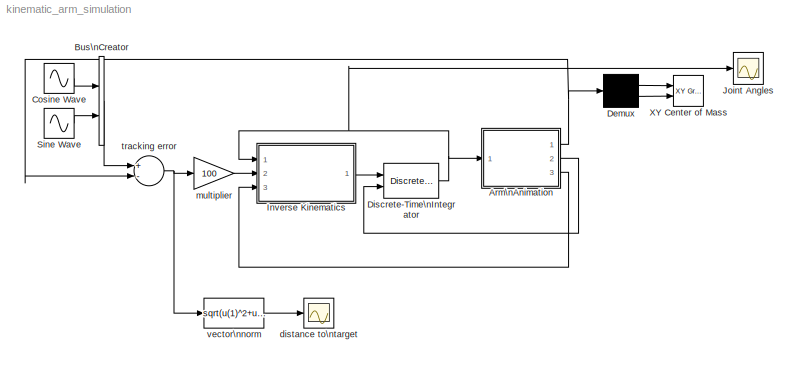
MODEL kinematic_arm_simulation
KIND model
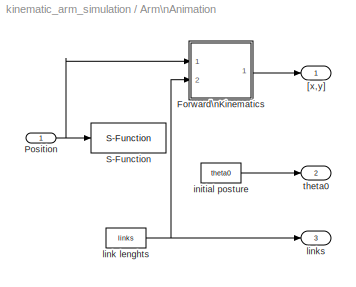
BLOCK [SubSystem] Arm\nAnimation
  FunctionWithSeparateData = off
  MaskCallbackString = ||
  MaskEnableString = on,on,on
  MaskHideContents = off
  MaskIconFrame = on
  MaskIconOpaque = on
  MaskIconRotate = none
  MaskIconUnits = normalized
  MaskPortRotate = default
  MaskPromptString = Link Lengths|Initial Posture|Sample time:
  MaskStyleString = edit,edit,edit
  MaskToolTipString = on,on,on
  MaskTunableValueString = on,on,on
  MaskType = ArmAnimation
  MaskValueString = [0.3 0.15 0.2 0.05]|[-0.4302;0.149;0.3393; 0.4422]|.05
  MaskVariables = links=@1;theta0=@2;ts=@3;
  MaskVisibilityString = on,on,on
  MinAlgLoopOccurrences = off
  Opaque = off
  Ports = [1, 3]
  PropExecContextOutsideSubsystem = off
  RTWSystemCode = Auto
  RequestExecContextInheritance = off
  SID = 1
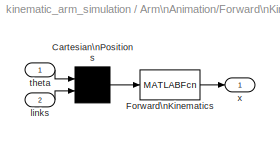
BLOCK [SubSystem] Arm\nAnimation/Forward\nKinematics
  FunctionWithSeparateData = off
  MaskHideContents = off
  MaskIconFrame = on
  MaskIconOpaque = on
  MaskIconRotate = none
  MaskIconUnits = autoscale
  MaskPortRotate = default
  MaskType = Forward Kinematics
  MinAlgLoopOccurrences = off
  Opaque = off
  Ports = [2, 1]
  PropExecContextOutsideSubsystem = off
  RTWSystemCode = Auto
  RequestExecContextInheritance = off
  SID = 3
BLOCK [Mux] Arm\nAnimation/Forward\nKinematics/Cartesian\nPositions
  Inputs = 2
  Ports = [2, 1]
  SID = 6
BLOCK [MATLABFcn] Arm\nAnimation/Forward\nKinematics/Forward\nKinematics
  MATLABFcn = forward_kinematics(u)
  OutputDimensions = 2
  Ports = [1, 1]
  SID = 7
BLOCK [Inport] Arm\nAnimation/Forward\nKinematics/links
  IconDisplay = Port number
  Port = 2
  SID = 5
BLOCK [Inport] Arm\nAnimation/Forward\nKinematics/theta
  IconDisplay = Port number
  SID = 4
BLOCK [Outport] Arm\nAnimation/Forward\nKinematics/x
  IconDisplay = Port number
  InitialOutput = 0
  SID = 8
BLOCK [Inport] Arm\nAnimation/Position
  IconDisplay = Port number
  SID = 2
BLOCK [S-Function] Arm\nAnimation/S-Function
  EnableBusSupport = off
  FunctionName = ArmAnimation
  Parameters = ts,theta0,links
  Ports = [1]
  SID = 9
BLOCK [Outport] Arm\nAnimation/[x,y]
  IconDisplay = Port number
  SID = 12
BLOCK [Constant] Arm\nAnimation/initial posture
  SID = 10
  Value = theta0
BLOCK [Constant] Arm\nAnimation/link lenghts
  SID = 11
  Value = links
BLOCK [Outport] Arm\nAnimation/links
  IconDisplay = Port number
  Port = 3
  SID = 14
BLOCK [Outport] Arm\nAnimation/theta0
  IconDisplay = Port number
  Port = 2
  SID = 13
BLOCK [BusCreator] Bus\nCreator
  DisplayOption = bar
  Inputs = 2
  Ports = [2, 1]
  SID = 15
BLOCK [Sin] Cosine Wave
  Amplitude = .15
  Bias = 0.2
  Frequency = pi/5
  Phase = pi/2
  Ports = [0, 1]
  SID = 16
  SampleTime = 0
BLOCK [Demux] Demux
  Outputs = 2
  Ports = [1, 2]
  SID = 17
BLOCK [DiscreteIntegrator] Discrete-Time\nIntegrator
  ExternalReset = none
  ICPrevOutput = DiscIntNeverNeededParam
  ICPrevScaledInput = DiscIntNeverNeededParam
  InitialConditionSource = external
  IntegratorMethod = Integration: Forward Euler
  Ports = [2, 1]
  SID = 18
  SampleTime = 0.01
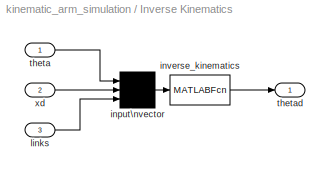
BLOCK [SubSystem] Inverse Kinematics
  FunctionWithSeparateData = off
  MaskHideContents = off
  MaskIconFrame = on
  MaskIconOpaque = on
  MaskIconRotate = none
  MaskIconUnits = autoscale
  MaskPortRotate = default
  MaskType = Inverse Kinematics
  MinAlgLoopOccurrences = off
  Opaque = off
  Ports = [3, 1]
  PropExecContextOutsideSubsystem = off
  RTWSystemCode = Auto
  RequestExecContextInheritance = off
  SID = 19
BLOCK [Mux] Inverse Kinematics/input\nvector
  Inputs = 3
  Ports = [3, 1]
  SID = 23
BLOCK [MATLABFcn] Inverse Kinematics/inverse_kinematics
  MATLABFcn = inverse_kinematics(u)
  Ports = [1, 1]
  SID = 24
BLOCK [Inport] Inverse Kinematics/links
  IconDisplay = Port number
  Port = 3
  SID = 22
BLOCK [Inport] Inverse Kinematics/theta
  IconDisplay = Port number
  SID = 20
BLOCK [Outport] Inverse Kinematics/thetad
  IconDisplay = Port number
  InitialOutput = 0
  SID = 25
BLOCK [Inport] Inverse Kinematics/xd
  IconDisplay = Port number
  Port = 2
  SID = 21
BLOCK [Scope] Joint Angles
  DataFormat = StructureWithTime
  Floating = off
  LimitDataPoints = off
  NumInputPorts = 1
  Ports = [1]
  SID = 26
  SampleTime = 0
  SaveName = ScopeData1
  YMax = 17.5
  YMin = -2.5
BLOCK [Sin] Sine Wave
  Amplitude = .15
  Frequency = pi/5
  Ports = [0, 1]
  SID = 27
  SampleTime = 0
BLOCK [Reference] XY Center of Mass  REF=simulink/Sinks/XY Graph
  FunctionWithSeparateData = off
  GeneratePreprocessorConditionals = off
  Ports = [2]
  RTWMemSecDataConstants = Inherit from model
  RTWMemSecDataInternal = Inherit from model
  RTWMemSecDataParameters = Inherit from model
  RTWMemSecFuncExecute = Inherit from model
  RTWMemSecFuncInitTerm = Inherit from model
  SID = 28
  ShowPortLabels = FromPortIcon
  SourceBlock = simulink/Sinks/XY Graph
  SourceType = XY scope.
  SystemSampleTime = -1
  st = -1
  xmax = .5
  xmin = -.5
  ymax = .5
  ymin = -.5
BLOCK [Scope] distance to\ntarget
  DataFormat = Array
  Floating = off
  NumInputPorts = 1
  Ports = [1]
  SID = 29
  SampleTime = 0
  TickLabels = on
  YMax = 0.4
  YMin = 0.05
BLOCK [Gain] multiplier
  Gain = 100
  SID = 30
BLOCK [Sum] tracking error
  Inputs = +-
  Ports = [2, 1]
  SID = 31
BLOCK [Fcn] vector\nnorm
  Expr = sqrt(u(1)^2+u(2)^2)
  SID = 32
LINE Arm\nAnimation/Forward\nKinematics/Cartesian\nPositions:1 -> Arm\nAnimation/Forward\nKinematics/Forward\nKinematics:1
LINE Arm\nAnimation/Forward\nKinematics/Forward\nKinematics:1 -> Arm\nAnimation/Forward\nKinematics/x:1
LINE Arm\nAnimation/Forward\nKinematics/links:1 -> Arm\nAnimation/Forward\nKinematics/Cartesian\nPositions:2
LINE Arm\nAnimation/Forward\nKinematics/theta:1 -> Arm\nAnimation/Forward\nKinematics/Cartesian\nPositions:1
LINE Arm\nAnimation/Forward\nKinematics:1 -> Arm\nAnimation/[x,y]:1
NET Arm\nAnimation/Position:1 -> Arm\nAnimation/Forward\nKinematics:1, Arm\nAnimation/S-Function:1
LINE Arm\nAnimation/initial posture:1 -> Arm\nAnimation/theta0:1
NET Arm\nAnimation/link lenghts:1 -> Arm\nAnimation/Forward\nKinematics:2, Arm\nAnimation/links:1
NET Arm\nAnimation:1 -> Demux:1, tracking error:2
LINE Arm\nAnimation:2 -> Discrete-Time\nIntegrator:2
LINE Arm\nAnimation:3 -> Inverse Kinematics:3
LINE Bus\nCreator:1 -> tracking error:1
LINE Cosine Wave:1 -> Bus\nCreator:1
LINE Demux:1 -> XY Center of Mass:1
LINE Demux:2 -> XY Center of Mass:2
NET Discrete-Time\nIntegrator:1 -> Arm\nAnimation:1, Inverse Kinematics:1, Joint Angles:1
LINE Inverse Kinematics/input\nvector:1 -> Inverse Kinematics/inverse_kinematics:1
LINE Inverse Kinematics/inverse_kinematics:1 -> Inverse Kinematics/thetad:1
LINE Inverse Kinematics/links:1 -> Inverse Kinematics/input\nvector:3
LINE Inverse Kinematics/theta:1 -> Inverse Kinematics/input\nvector:1
LINE Inverse Kinematics/xd:1 -> Inverse Kinematics/input\nvector:2
LINE Inverse Kinematics:1 -> Discrete-Time\nIntegrator:1
LINE Sine Wave:1 -> Bus\nCreator:2
LINE multiplier:1 -> Inverse Kinematics:2
NET tracking error:1 -> multiplier:1, vector\nnorm:1
LINE vector\nnorm:1 -> distance to\ntarget:1
note: NET lines group one-source signal fan-out (src -> all destinations, sorted); 1:1 wires keep LINE
